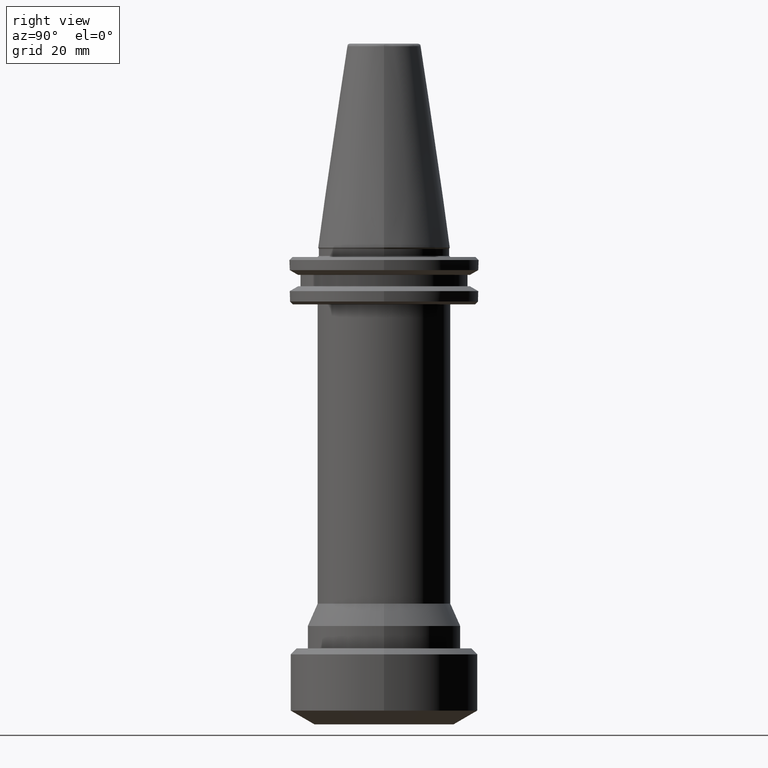
[diagram: clean part render]
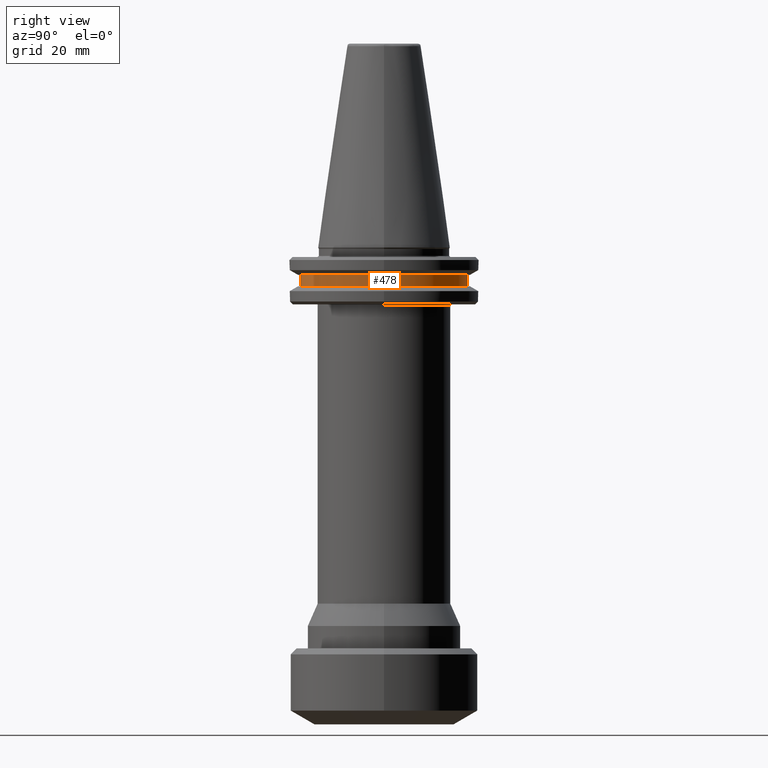
[diagram: same view with one face highlighted and labeled with its STEP entity id]
A machine part, right view. The second image highlights one B-rep face of the part: STEP entity #478.
In plain terms, the highlighted cylindrical surface (partial cylindrical patch) has radius 28 mm, axis along (0, -0, 1).
Its self-contained STEP definition (entity closure, byte-faithful):
#116 = DIRECTION ( 'NONE',  ( 0.0000000000000000000, -3.097720492815727700E-017, 1.000000000000000000 ) ) ;
#137 = LINE ( 'NONE', #1468, #844 ) ;
#175 = CIRCLE ( 'NONE', #393, 28.00000000000000000 ) ;
#367 = EDGE_LOOP ( 'NONE', ( #906, #965, #1921, #1594 ) ) ;
#393 = AXIS2_PLACEMENT_3D ( 'NONE', #610, #1644, #747 ) ;
#419 = DIRECTION ( 'NONE',  ( 0.0000000000000000000, -3.097720492815727700E-017, 1.000000000000000000 ) ) ;
#442 = CARTESIAN_POINT ( 'NONE',  ( 0.0000000000000000000, -1.177133787002800000E-016, -9.200000000862496900 ) ) ;
#478 = ADVANCED_FACE ( 'NONE', ( #1887 ), #564, .T. ) ;
#498 = CARTESIAN_POINT ( 'NONE',  ( 3.429011037612589300E-015, 28.00000000000000000, -13.00000000090000000 ) ) ;
#564 = CYLINDRICAL_SURFACE ( 'NONE', #1328, 28.00000000000000000 ) ;
#577 = DIRECTION ( 'NONE',  ( 0.0000000000000000000, -3.097720492815727700E-017, 1.000000000000000000 ) ) ;
#589 = DIRECTION ( 'NONE',  ( 0.0000000000000000000, -1.000000000000000000, -6.195440985631454100E-017 ) ) ;
#610 = CARTESIAN_POINT ( 'NONE',  ( 0.0000000000000000000, 2.787942788308358500E-026, -13.00000000090000200 ) ) ;
#619 = EDGE_CURVE ( 'NONE', #1160, #837, #175, .T. ) ;
#684 = EDGE_CURVE ( 'NONE', #1160, #1652, #1526, .T. ) ;
#737 = CIRCLE ( 'NONE', #937, 28.00000000000000000 ) ;
#747 = DIRECTION ( 'NONE',  ( 0.0000000000000000000, -1.000000000000000000, -6.195440985631454100E-017 ) ) ;
#791 = CARTESIAN_POINT ( 'NONE',  ( 3.429011037612589300E-015, 28.00000000000000000, -9.200000000862496900 ) ) ;
#837 = VERTEX_POINT ( 'NONE', #498 ) ;
#844 = VECTOR ( 'NONE', #577, 1000.000000000000000 ) ;
#906 = ORIENTED_EDGE ( 'NONE', *, *, #619, .T. ) ;
#937 = AXIS2_PLACEMENT_3D ( 'NONE', #442, #1483, #589 ) ;
#965 = ORIENTED_EDGE ( 'NONE', *, *, #1221, .T. ) ;
#1160 = VERTEX_POINT ( 'NONE', #1179 ) ;
#1170 = DIRECTION ( 'NONE',  ( 0.0000000000000000000, -1.000000000000000000, -6.195440985631454100E-017 ) ) ;
#1179 = CARTESIAN_POINT ( 'NONE',  ( 0.0000000000000000000, -28.00000000000000000, -13.00000000090000400 ) ) ;
#1221 = EDGE_CURVE ( 'NONE', #837, #1482, #137, .T. ) ;
#1328 = AXIS2_PLACEMENT_3D ( 'NONE', #1465, #419, #1170 ) ;
#1465 = CARTESIAN_POINT ( 'NONE',  ( 0.0000000000000000000, 0.0000000000000000000, -13.00000000000000400 ) ) ;
#1468 = CARTESIAN_POINT ( 'NONE',  ( 3.429011037612589300E-015, 28.00000000000000000, -13.00000000000000200 ) ) ;
#1482 = VERTEX_POINT ( 'NONE', #791 ) ;
#1483 = DIRECTION ( 'NONE',  ( -0.0000000000000000000, 3.097720492815727700E-017, -1.000000000000000000 ) ) ;
#1526 = LINE ( 'NONE', #1748, #1914 ) ;
#1557 = CARTESIAN_POINT ( 'NONE',  ( 0.0000000000000000000, -28.00000000000000000, -9.200000000862498700 ) ) ;
#1594 = ORIENTED_EDGE ( 'NONE', *, *, #684, .F. ) ;
#1644 = DIRECTION ( 'NONE',  ( 0.0000000000000000000, -3.097720492815727700E-017, 1.000000000000000000 ) ) ;
#1652 = VERTEX_POINT ( 'NONE', #1557 ) ;
#1748 = CARTESIAN_POINT ( 'NONE',  ( 0.0000000000000000000, -28.00000000000000000, -13.00000000000000500 ) ) ;
#1887 = FACE_OUTER_BOUND ( 'NONE', #367, .T. ) ;
#1900 = EDGE_CURVE ( 'NONE', #1482, #1652, #737, .T. ) ;
#1914 = VECTOR ( 'NONE', #116, 1000.000000000000000 ) ;
#1921 = ORIENTED_EDGE ( 'NONE', *, *, #1900, .T. ) ;